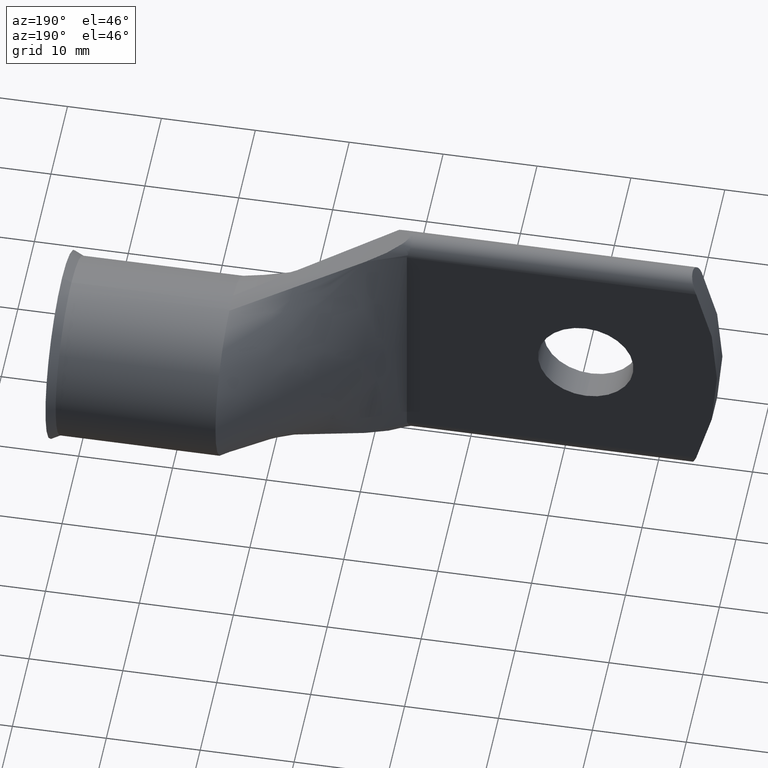
[diagram: clean part render]
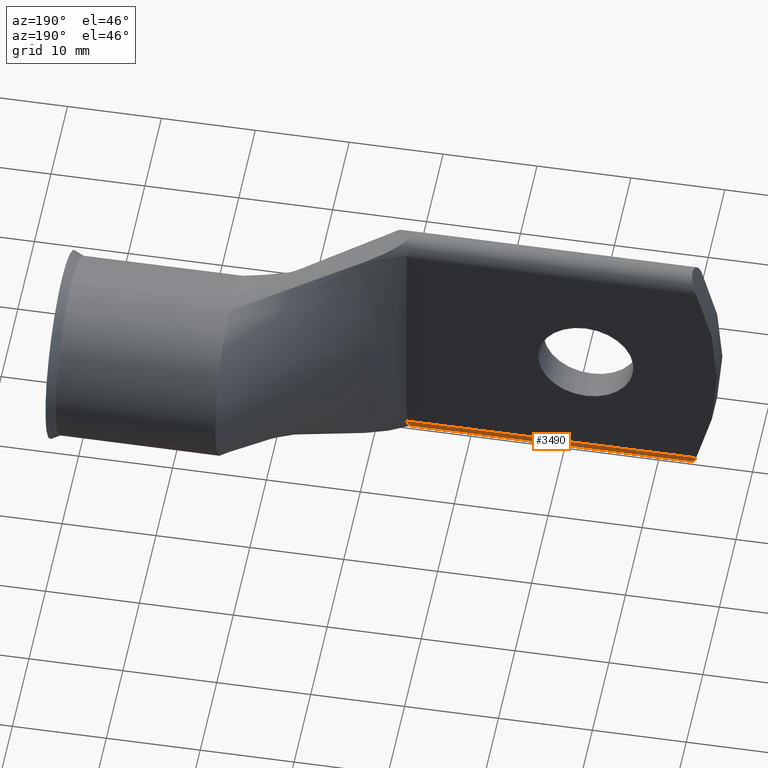
[diagram: same view with one face highlighted and labeled with its STEP entity id]
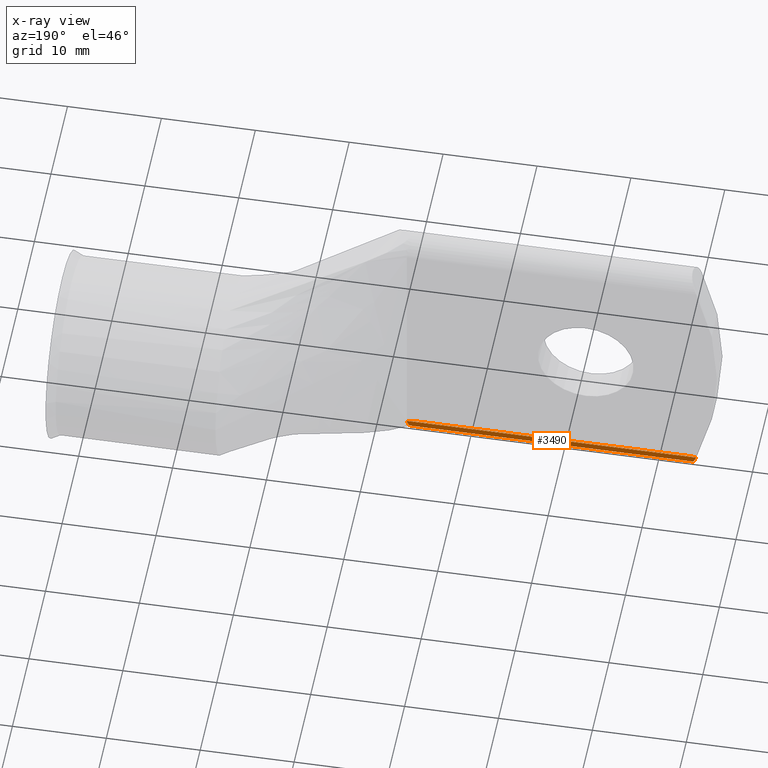
[diagram: x-ray of the same camera — body ghosted, the highlighted face saturated]
A machine part, auxiliary view. The second image highlights one B-rep face of the part: STEP entity #3490.
The next image is the same camera in x-ray: the body ghosted, the highlighted face saturated — about 0% of this face is hidden behind the body in this view.
In plain terms, the highlighted cylindrical surface (edge-blend (fillet) strip) has radius 1.651 mm, axis along (1, 0, 0).
Its self-contained STEP definition (entity closure, byte-faithful):
#352 = CARTESIAN_POINT ( 'NONE',  ( -0.5366859254650457878, -5.332088992847837744E-11, -0.5500000124907826748 ) ) ;
#404 = CARTESIAN_POINT ( 'NONE',  ( -0.5426483038883236354, 0.04060602898082998208, -0.5359386217416066689 ) ) ;
#432 = CARTESIAN_POINT ( 'NONE',  ( 0.6499999999999999112, 0.06499999999999997446, -0.4897674380036509123 ) ) ;
#514 = CARTESIAN_POINT ( 'NONE',  ( 0.6500000000000000222, 0.000000000000000000, -0.4850000000000000977 ) ) ;
#582 = CARTESIAN_POINT ( 'NONE',  ( -0.5366859254650457878, -5.332088992847837744E-11, -0.5500000124907826748 ) ) ;
#632 = EDGE_CURVE ( 'NONE', #1818, #4343, #2378, .T. ) ;
#700 = CARTESIAN_POINT ( 'NONE',  ( 0.6442983058973198451, 0.06207652817900533720, -0.5054944076301516320 ) ) ;
#709 = ORIENTED_EDGE ( 'NONE', *, *, #632, .F. ) ;
#767 = LINE ( 'NONE', #3226, #1947 ) ;
#843 = DIRECTION ( 'NONE',  ( 1.000000000000000000, 0.000000000000000000, 0.000000000000000000 ) ) ;
#902 = FACE_OUTER_BOUND ( 'NONE', #4188, .T. ) ;
#1128 = CARTESIAN_POINT ( 'NONE',  ( -0.5405839271819743441, 0.03351839562479431295, -0.5408582438237720114 ) ) ;
#1136 = CARTESIAN_POINT ( 'NONE',  ( 0.6390105188028454286, 0.05193052829704752904, -0.5247752082033311227 ) ) ;
#1164 = CARTESIAN_POINT ( 'NONE',  ( 0.6361814578938042031, 0.000000000000000000, -0.5500000000000000444 ) ) ;
#1230 = CARTESIAN_POINT ( 'NONE',  ( 0.6361814578938042031, 0.000000000000000000, -0.5500000000000000444 ) ) ;
#1453 = VECTOR ( 'NONE', #843, 39.37007874015748143 ) ;
#1818 = VERTEX_POINT ( 'NONE', #4645 ) ;
#1860 = CARTESIAN_POINT ( 'NONE',  ( 0.6471762064755322008, 0.06354302216722849950, -0.4986851866576638703 ) ) ;
#1947 = VECTOR ( 'NONE', #4812, 39.37007874015748143 ) ;
#1949 = CARTESIAN_POINT ( 'NONE',  ( -0.5396847509535021015, 0.02969955750818276119, -0.5429813490595392089 ) ) ;
#2028 = CARTESIAN_POINT ( 'NONE',  ( 0.6500000000000000222, 0.06500000000000000222, -0.4850000000000000977 ) ) ;
#2276 = CARTESIAN_POINT ( 'NONE',  ( 0.6361035689699754414, 0.01486647871344265806, -0.5483866323775300478 ) ) ;
#2326 = CARTESIAN_POINT ( 'NONE',  ( 0.6363134619071189046, 0.02899977433671670907, -0.5436495579230318231 ) ) ;
#2378 = B_SPLINE_CURVE_WITH_KNOTS ( 'NONE', 3,
 ( #3202, #2709, #432, #2761 ),
 .UNSPECIFIED., .F., .F.,
 ( 4, 4 ),
 ( 0.005846954782548678328, 0.006199059310897436087 ),
 .UNSPECIFIED. ) ;
#2456 = EDGE_CURVE ( 'NONE', #1818, #4112, #3828, .T. ) ;
#2679 = ORIENTED_EDGE ( 'NONE', *, *, #3902, .F. ) ;
#2695 = CARTESIAN_POINT ( 'NONE',  ( 0.6379808957869766983, 0.04707677853254047667, -0.5304352703486829856 ) ) ;
#2709 = CARTESIAN_POINT ( 'NONE',  ( 0.6489776801991162802, 0.06446100050379095781, -0.4944228320951515321 ) ) ;
#2720 = CARTESIAN_POINT ( 'NONE',  ( 0.6361164181647462890, 0.007527388504238345830, -0.5496700531606990570 ) ) ;
#2747 = CARTESIAN_POINT ( 'NONE',  ( 0.6366245841915674220, 0.03556639582888681400, -0.5399146461010422282 ) ) ;
#2761 = CARTESIAN_POINT ( 'NONE',  ( 0.6500000000000000222, 0.06500000000000000222, -0.4850000000000000977 ) ) ;
#2814 = LINE ( 'NONE', #4402, #1453 ) ;
#2874 = DIRECTION ( 'NONE',  ( 0.000000000000000000, 0.000000000000000000, -1.000000000000000000 ) ) ;
#2888 = VERTEX_POINT ( 'NONE', #3183 ) ;
#3057 = CARTESIAN_POINT ( 'NONE',  ( 0.6361481009089798855, 0.003714598857306708208, -0.5500000000000000444 ) ) ;
#3123 = CARTESIAN_POINT ( 'NONE',  ( -0.5437852301640409003, 0.04380408037035096042, -0.5332099444531454013 ) ) ;
#3183 = CARTESIAN_POINT ( 'NONE',  ( -0.5627381903521790907, 0.06500000000000000222, -0.4849999999999994871 ) ) ;
#3202 = CARTESIAN_POINT ( 'NONE',  ( 0.6471762064755322008, 0.06354302216722849950, -0.4986851866576638703 ) ) ;
#3226 = CARTESIAN_POINT ( 'NONE',  ( 0.6500000000000000222, 0.06500000000000000222, -0.4850000000000000977 ) ) ;
#3288 = DIRECTION ( 'NONE',  ( 1.000000000000000000, 0.000000000000000000, 0.000000000000000000 ) ) ;
#3490 = ADVANCED_FACE ( 'NONE', ( #902 ), #4048, .T. ) ;
#3495 = CARTESIAN_POINT ( 'NONE',  ( -0.5475557123784234870, 0.05264184573090827102, -0.5240605049335378407 ) ) ;
#3546 = CARTESIAN_POINT ( 'NONE',  ( -0.5504375008912200107, 0.05721874754369431215, -0.5169401047106519931 ) ) ;
#3635 = AXIS2_PLACEMENT_3D ( 'NONE', #514, #3288, #2874 ) ;
#3828 = B_SPLINE_CURVE_WITH_KNOTS ( 'NONE', 3,
 ( #1860, #700, #3843, #1136, #2695, #2747, #2326, #4723, #2276, #2720, #3057, #1164 ),
 .UNSPECIFIED., .F., .F.,
 ( 4, 2, 2, 2, 2, 4 ),
 ( 1.171941807216024231E-17, 0.0005661235162144242616, 0.001132247032428836814, 0.001698370548643249366, 0.001981432306750455750, 0.002264494064857661918 ),
 .UNSPECIFIED. ) ;
#3843 = CARTESIAN_POINT ( 'NONE',  ( 0.6421997568355058972, 0.05949116595446640732, -0.5121964727530416983 ) ) ;
#3902 = EDGE_CURVE ( 'NONE', #2888, #4603, #4629, .T. ) ;
#3910 = CARTESIAN_POINT ( 'NONE',  ( -0.5382212143756732736, 0.02170995921793771044, -0.5464215930777096553 ) ) ;
#3962 = CARTESIAN_POINT ( 'NONE',  ( -0.5366864273782433470, 0.004408208466152641926, -0.5499988460997123907 ) ) ;
#4048 = CYLINDRICAL_SURFACE ( 'NONE', #3635, 0.06499999999999998834 ) ;
#4062 = ORIENTED_EDGE ( 'NONE', *, *, #4412, .F. ) ;
#4112 = VERTEX_POINT ( 'NONE', #1230 ) ;
#4188 = EDGE_LOOP ( 'NONE', ( #4943, #2679, #4062, #709, #4911 ) ) ;
#4271 = CARTESIAN_POINT ( 'NONE',  ( -0.5596517882794407317, 0.06499999999999997446, -0.4932994365642462409 ) ) ;
#4298 = CARTESIAN_POINT ( 'NONE',  ( -0.5368839590695484443, 0.008902251685572525747, -0.5495404609911208604 ) ) ;
#4341 = EDGE_CURVE ( 'NONE', #4603, #4112, #2814, .T. ) ;
#4343 = VERTEX_POINT ( 'NONE', #2028 ) ;
#4376 = CARTESIAN_POINT ( 'NONE',  ( -0.5627381903521790907, 0.06500000000000000222, -0.4849999999999994871 ) ) ;
#4402 = CARTESIAN_POINT ( 'NONE',  ( 0.6500000000000000222, 0.000000000000000000, -0.5500000000000000444 ) ) ;
#4412 = EDGE_CURVE ( 'NONE', #4343, #2888, #767, .T. ) ;
#4603 = VERTEX_POINT ( 'NONE', #582 ) ;
#4629 = B_SPLINE_CURVE_WITH_KNOTS ( 'NONE', 3,
 ( #4376, #4271, #4714, #3546, #3495, #3123, #404, #1128, #1949, #3910, #4738, #4298, #3962, #352 ),
 .UNSPECIFIED., .F., .F.,
 ( 4, 2, 2, 2, 2, 2, 4 ),
 ( 0.000000000000000000, 0.1251027846672421451, 0.2502055693344842902, 0.3127569616681056819, 0.3753083540017270736, 0.4378597463353485209, 0.5004111386689699126 ),
 .UNSPECIFIED. ) ;
#4645 = CARTESIAN_POINT ( 'NONE',  ( 0.6471762064755322008, 0.06354302216722849950, -0.4986851866576638703 ) ) ;
#4714 = CARTESIAN_POINT ( 'NONE',  ( -0.5565055058100794039, 0.06341547922072739152, -0.5015097006384298117 ) ) ;
#4723 = CARTESIAN_POINT ( 'NONE',  ( 0.6361212218106968574, 0.01845846703707971007, -0.5474357620573178096 ) ) ;
#4738 = CARTESIAN_POINT ( 'NONE',  ( -0.5376600689250468079, 0.01758987318997681792, -0.5477315693082870363 ) ) ;
#4812 = DIRECTION ( 'NONE',  ( -1.000000000000000000, 0.000000000000000000, 0.000000000000000000 ) ) ;
#4911 = ORIENTED_EDGE ( 'NONE', *, *, #2456, .T. ) ;
#4943 = ORIENTED_EDGE ( 'NONE', *, *, #4341, .F. ) ;